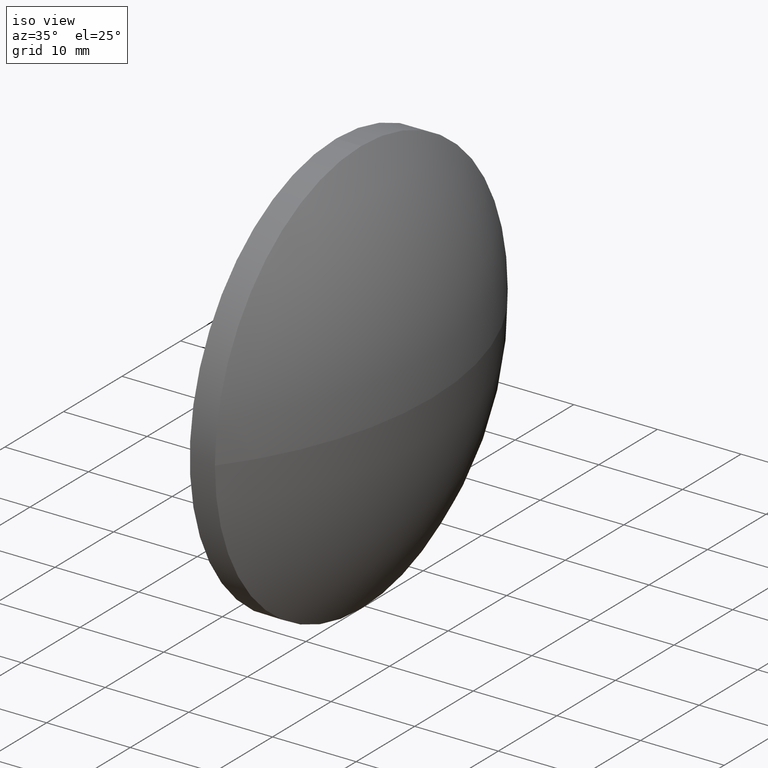
[diagram: clean part render]
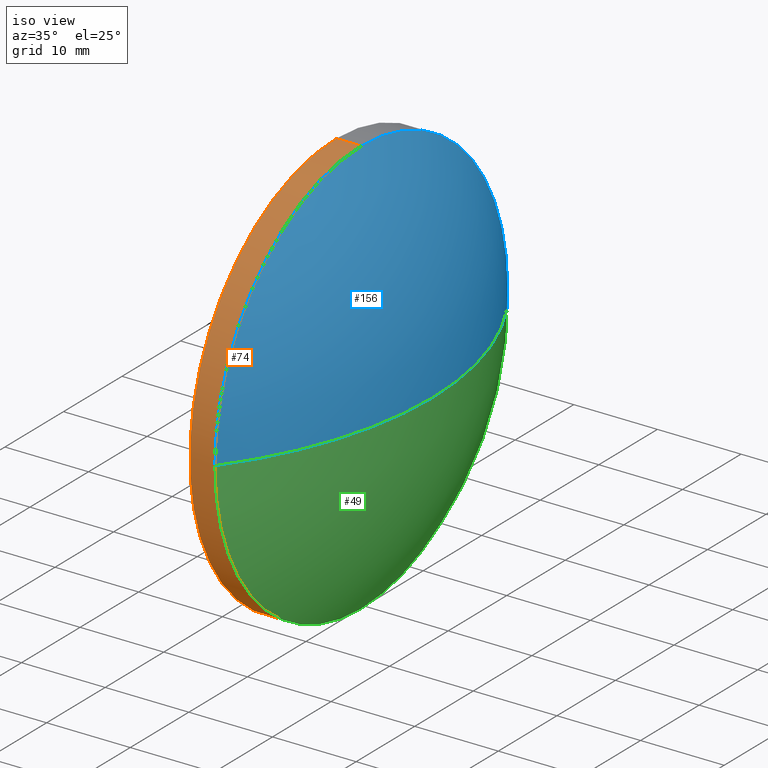
[diagram: same view with three faces highlighted in distinct colors, each labeled with its STEP entity id]
A machine part, iso view with three faces highlighted in distinct colors.
Their STEP definitions:

[orange] entity #74 — the highlighted cylindrical surface (partial cylindrical patch) has radius 25 mm, axis along (-1, -0, -0).
#1 = ORIENTED_EDGE ( 'NONE', *, *, #148, .T. ) ;
#7 = VERTEX_POINT ( 'NONE', #118 ) ;
#12 = CARTESIAN_POINT ( 'NONE',  ( 444.4311937674011100, 47.44710200765325700, 24.99999999999999300 ) ) ;
#15 = VECTOR ( 'NONE', #55, 1000.000000000000000 ) ;
#22 = CYLINDRICAL_SURFACE ( 'NONE', #137, 24.99999999999999300 ) ;
#26 = DIRECTION ( 'NONE',  ( -1.000000000000000000, -0.0000000000000000000, -0.0000000000000000000 ) ) ;
#27 = DIRECTION ( 'NONE',  ( -1.000000000000000000, -0.0000000000000000000, -0.0000000000000000000 ) ) ;
#30 = CARTESIAN_POINT ( 'NONE',  ( 448.4029690565171200, 47.44710200765325700, 24.99999999999999300 ) ) ;
#31 = CARTESIAN_POINT ( 'NONE',  ( 451.4029690565171200, 47.44710200765325700, -24.99999999999999300 ) ) ;
#32 = DIRECTION ( 'NONE',  ( 0.0000000000000000000, 0.0000000000000000000, 1.000000000000000000 ) ) ;
#36 = EDGE_LOOP ( 'NONE', ( #53, #1, #136, #61, #123 ) ) ;
#40 = AXIS2_PLACEMENT_3D ( 'NONE', #120, #144, #180 ) ;
#47 = VERTEX_POINT ( 'NONE', #79 ) ;
#53 = ORIENTED_EDGE ( 'NONE', *, *, #186, .F. ) ;
#55 = DIRECTION ( 'NONE',  ( -1.000000000000000000, -0.0000000000000000000, -0.0000000000000000000 ) ) ;
#59 = EDGE_CURVE ( 'NONE', #65, #178, #93, .T. ) ;
#61 = ORIENTED_EDGE ( 'NONE', *, *, #80, .T. ) ;
#65 = VERTEX_POINT ( 'NONE', #109 ) ;
#74 = ADVANCED_FACE ( 'NONE', ( #179 ), #22, .T. ) ;
#75 = VERTEX_POINT ( 'NONE', #31 ) ;
#79 = CARTESIAN_POINT ( 'NONE',  ( 451.4029690565171200, 22.44710200765326000, 0.0000000000000000000 ) ) ;
#80 = EDGE_CURVE ( 'NONE', #7, #178, #117, .T. ) ;
#84 = DIRECTION ( 'NONE',  ( 0.0000000000000000000, 0.0000000000000000000, 1.000000000000000000 ) ) ;
#85 = EDGE_CURVE ( 'NONE', #47, #7, #111, .T. ) ;
#87 = CARTESIAN_POINT ( 'NONE',  ( 451.4029690565171200, 47.44710200765325700, 0.0000000000000000000 ) ) ;
#93 = CIRCLE ( 'NONE', #40, 24.99999999999999300 ) ;
#98 = CIRCLE ( 'NONE', #110, 24.99999999999999300 ) ;
#103 = AXIS2_PLACEMENT_3D ( 'NONE', #87, #182, #132 ) ;
#108 = CARTESIAN_POINT ( 'NONE',  ( 444.4311937674011100, 47.44710200765325700, -24.99999999999999300 ) ) ;
#109 = CARTESIAN_POINT ( 'NONE',  ( 448.4029690565171200, 47.44710200765325700, -24.99999999999999300 ) ) ;
#110 = AXIS2_PLACEMENT_3D ( 'NONE', #142, #26, #84 ) ;
#111 = CIRCLE ( 'NONE', #103, 24.99999999999999300 ) ;
#117 = LINE ( 'NONE', #12, #181 ) ;
#118 = CARTESIAN_POINT ( 'NONE',  ( 451.4029690565171200, 47.44710200765325700, 24.99999999999999300 ) ) ;
#120 = CARTESIAN_POINT ( 'NONE',  ( 448.4029690565171200, 47.44710200765325700, 0.0000000000000000000 ) ) ;
#121 = DIRECTION ( 'NONE',  ( -1.000000000000000000, -0.0000000000000000000, -0.0000000000000000000 ) ) ;
#123 = ORIENTED_EDGE ( 'NONE', *, *, #59, .F. ) ;
#132 = DIRECTION ( 'NONE',  ( 0.0000000000000000000, 0.0000000000000000000, 1.000000000000000000 ) ) ;
#136 = ORIENTED_EDGE ( 'NONE', *, *, #85, .T. ) ;
#137 = AXIS2_PLACEMENT_3D ( 'NONE', #152, #121, #32 ) ;
#142 = CARTESIAN_POINT ( 'NONE',  ( 451.4029690565171200, 47.44710200765325700, 0.0000000000000000000 ) ) ;
#144 = DIRECTION ( 'NONE',  ( -1.000000000000000000, -0.0000000000000000000, -0.0000000000000000000 ) ) ;
#148 = EDGE_CURVE ( 'NONE', #75, #47, #98, .T. ) ;
#152 = CARTESIAN_POINT ( 'NONE',  ( 444.4311937674011100, 47.44710200765325700, 0.0000000000000000000 ) ) ;
#168 = LINE ( 'NONE', #108, #15 ) ;
#178 = VERTEX_POINT ( 'NONE', #30 ) ;
#179 = FACE_OUTER_BOUND ( 'NONE', #36, .T. ) ;
#180 = DIRECTION ( 'NONE',  ( 0.0000000000000000000, 0.0000000000000000000, 1.000000000000000000 ) ) ;
#181 = VECTOR ( 'NONE', #27, 1000.000000000000000 ) ;
#182 = DIRECTION ( 'NONE',  ( -1.000000000000000000, -0.0000000000000000000, -0.0000000000000000000 ) ) ;
#186 = EDGE_CURVE ( 'NONE', #75, #65, #168, .T. ) ;

[blue] entity #156 — the highlighted spherical surface has radius 41.285 mm.
#3 = AXIS2_PLACEMENT_3D ( 'NONE', #71, #167, #131 ) ;
#7 = VERTEX_POINT ( 'NONE', #118 ) ;
#8 = VERTEX_POINT ( 'NONE', #104 ) ;
#10 = AXIS2_PLACEMENT_3D ( 'NONE', #37, #139, #162 ) ;
#14 = CARTESIAN_POINT ( 'NONE',  ( 451.4029690565171200, 72.44710200765327100, 3.061616997868382600E-015 ) ) ;
#19 = ORIENTED_EDGE ( 'NONE', *, *, #85, .F. ) ;
#24 = DIRECTION ( 'NONE',  ( 0.0000000000000000000, 0.0000000000000000000, 1.000000000000000000 ) ) ;
#37 = CARTESIAN_POINT ( 'NONE',  ( 418.5479809189132500, 47.44710200765326400, 0.0000000000000000000 ) ) ;
#42 = AXIS2_PLACEMENT_3D ( 'NONE', #161, #78, #24 ) ;
#46 = EDGE_CURVE ( 'NONE', #8, #173, #50, .T. ) ;
#47 = VERTEX_POINT ( 'NONE', #79 ) ;
#48 = EDGE_CURVE ( 'NONE', #7, #173, #149, .T. ) ;
#50 = CIRCLE ( 'NONE', #10, 41.28498813760384000 ) ;
#64 = CIRCLE ( 'NONE', #3, 41.28498813760384000 ) ;
#69 = DIRECTION ( 'NONE',  ( 0.0000000000000000000, -1.000000000000000000, 0.0000000000000000000 ) ) ;
#71 = CARTESIAN_POINT ( 'NONE',  ( 418.5479809189132500, 47.44710200765326400, 0.0000000000000000000 ) ) ;
#78 = DIRECTION ( 'NONE',  ( -1.000000000000000000, -0.0000000000000000000, -0.0000000000000000000 ) ) ;
#79 = CARTESIAN_POINT ( 'NONE',  ( 451.4029690565171200, 22.44710200765326000, 0.0000000000000000000 ) ) ;
#85 = EDGE_CURVE ( 'NONE', #47, #7, #111, .T. ) ;
#87 = CARTESIAN_POINT ( 'NONE',  ( 451.4029690565171200, 47.44710200765325700, 0.0000000000000000000 ) ) ;
#103 = AXIS2_PLACEMENT_3D ( 'NONE', #87, #182, #132 ) ;
#104 = CARTESIAN_POINT ( 'NONE',  ( 459.8329690565171300, 47.44710200765326400, 0.0000000000000000000 ) ) ;
#106 = ORIENTED_EDGE ( 'NONE', *, *, #159, .F. ) ;
#111 = CIRCLE ( 'NONE', #103, 24.99999999999999300 ) ;
#112 = ORIENTED_EDGE ( 'NONE', *, *, #48, .F. ) ;
#116 = AXIS2_PLACEMENT_3D ( 'NONE', #129, #151, #69 ) ;
#118 = CARTESIAN_POINT ( 'NONE',  ( 451.4029690565171200, 47.44710200765325700, 24.99999999999999300 ) ) ;
#129 = CARTESIAN_POINT ( 'NONE',  ( 418.5479809189132500, 47.44710200765326400, 0.0000000000000000000 ) ) ;
#131 = DIRECTION ( 'NONE',  ( -1.000000000000000000, 0.0000000000000000000, 0.0000000000000000000 ) ) ;
#132 = DIRECTION ( 'NONE',  ( 0.0000000000000000000, 0.0000000000000000000, 1.000000000000000000 ) ) ;
#133 = ORIENTED_EDGE ( 'NONE', *, *, #46, .T. ) ;
#134 = FACE_OUTER_BOUND ( 'NONE', #165, .T. ) ;
#139 = DIRECTION ( 'NONE',  ( 0.0000000000000000000, -1.224646799147353200E-016, 1.000000000000000000 ) ) ;
#149 = CIRCLE ( 'NONE', #42, 24.99999999999999300 ) ;
#151 = DIRECTION ( 'NONE',  ( 0.0000000000000000000, 0.0000000000000000000, 1.000000000000000000 ) ) ;
#156 = ADVANCED_FACE ( 'NONE', ( #134 ), #176, .T. ) ;
#159 = EDGE_CURVE ( 'NONE', #8, #47, #64, .T. ) ;
#161 = CARTESIAN_POINT ( 'NONE',  ( 451.4029690565171200, 47.44710200765325700, 0.0000000000000000000 ) ) ;
#162 = DIRECTION ( 'NONE',  ( 0.0000000000000000000, -1.000000000000000000, -1.224646799147353200E-016 ) ) ;
#165 = EDGE_LOOP ( 'NONE', ( #106, #133, #112, #19 ) ) ;
#167 = DIRECTION ( 'NONE',  ( 0.0000000000000000000, 0.0000000000000000000, -1.000000000000000000 ) ) ;
#173 = VERTEX_POINT ( 'NONE', #14 ) ;
#176 = SPHERICAL_SURFACE ( 'NONE', #116, 41.28498813760384000 ) ;
#182 = DIRECTION ( 'NONE',  ( -1.000000000000000000, -0.0000000000000000000, -0.0000000000000000000 ) ) ;

[green] entity #49 — the highlighted spherical surface has radius 41.285 mm.
#3 = AXIS2_PLACEMENT_3D ( 'NONE', #71, #167, #131 ) ;
#6 = EDGE_CURVE ( 'NONE', #173, #75, #135, .T. ) ;
#8 = VERTEX_POINT ( 'NONE', #104 ) ;
#9 = DIRECTION ( 'NONE',  ( 0.0000000000000000000, 0.0000000000000000000, 1.000000000000000000 ) ) ;
#10 = AXIS2_PLACEMENT_3D ( 'NONE', #37, #139, #162 ) ;
#14 = CARTESIAN_POINT ( 'NONE',  ( 451.4029690565171200, 72.44710200765327100, 3.061616997868382600E-015 ) ) ;
#23 = DIRECTION ( 'NONE',  ( 0.0000000000000000000, -1.000000000000000000, 0.0000000000000000000 ) ) ;
#26 = DIRECTION ( 'NONE',  ( -1.000000000000000000, -0.0000000000000000000, -0.0000000000000000000 ) ) ;
#31 = CARTESIAN_POINT ( 'NONE',  ( 451.4029690565171200, 47.44710200765325700, -24.99999999999999300 ) ) ;
#33 = AXIS2_PLACEMENT_3D ( 'NONE', #100, #67, #9 ) ;
#34 = ORIENTED_EDGE ( 'NONE', *, *, #46, .F. ) ;
#37 = CARTESIAN_POINT ( 'NONE',  ( 418.5479809189132500, 47.44710200765326400, 0.0000000000000000000 ) ) ;
#38 = CARTESIAN_POINT ( 'NONE',  ( 418.5479809189132500, 47.44710200765326400, 0.0000000000000000000 ) ) ;
#46 = EDGE_CURVE ( 'NONE', #8, #173, #50, .T. ) ;
#47 = VERTEX_POINT ( 'NONE', #79 ) ;
#49 = ADVANCED_FACE ( 'NONE', ( #155 ), #107, .T. ) ;
#50 = CIRCLE ( 'NONE', #10, 41.28498813760384000 ) ;
#62 = AXIS2_PLACEMENT_3D ( 'NONE', #38, #68, #23 ) ;
#64 = CIRCLE ( 'NONE', #3, 41.28498813760384000 ) ;
#67 = DIRECTION ( 'NONE',  ( -1.000000000000000000, -0.0000000000000000000, -0.0000000000000000000 ) ) ;
#68 = DIRECTION ( 'NONE',  ( 0.0000000000000000000, 0.0000000000000000000, 1.000000000000000000 ) ) ;
#71 = CARTESIAN_POINT ( 'NONE',  ( 418.5479809189132500, 47.44710200765326400, 0.0000000000000000000 ) ) ;
#75 = VERTEX_POINT ( 'NONE', #31 ) ;
#79 = CARTESIAN_POINT ( 'NONE',  ( 451.4029690565171200, 22.44710200765326000, 0.0000000000000000000 ) ) ;
#82 = ORIENTED_EDGE ( 'NONE', *, *, #6, .F. ) ;
#84 = DIRECTION ( 'NONE',  ( 0.0000000000000000000, 0.0000000000000000000, 1.000000000000000000 ) ) ;
#98 = CIRCLE ( 'NONE', #110, 24.99999999999999300 ) ;
#100 = CARTESIAN_POINT ( 'NONE',  ( 451.4029690565171200, 47.44710200765325700, 0.0000000000000000000 ) ) ;
#101 = ORIENTED_EDGE ( 'NONE', *, *, #159, .T. ) ;
#104 = CARTESIAN_POINT ( 'NONE',  ( 459.8329690565171300, 47.44710200765326400, 0.0000000000000000000 ) ) ;
#107 = SPHERICAL_SURFACE ( 'NONE', #62, 41.28498813760384000 ) ;
#110 = AXIS2_PLACEMENT_3D ( 'NONE', #142, #26, #84 ) ;
#128 = ORIENTED_EDGE ( 'NONE', *, *, #148, .F. ) ;
#131 = DIRECTION ( 'NONE',  ( -1.000000000000000000, 0.0000000000000000000, 0.0000000000000000000 ) ) ;
#135 = CIRCLE ( 'NONE', #33, 24.99999999999999300 ) ;
#139 = DIRECTION ( 'NONE',  ( 0.0000000000000000000, -1.224646799147353200E-016, 1.000000000000000000 ) ) ;
#142 = CARTESIAN_POINT ( 'NONE',  ( 451.4029690565171200, 47.44710200765325700, 0.0000000000000000000 ) ) ;
#143 = EDGE_LOOP ( 'NONE', ( #34, #101, #128, #82 ) ) ;
#148 = EDGE_CURVE ( 'NONE', #75, #47, #98, .T. ) ;
#155 = FACE_OUTER_BOUND ( 'NONE', #143, .T. ) ;
#159 = EDGE_CURVE ( 'NONE', #8, #47, #64, .T. ) ;
#162 = DIRECTION ( 'NONE',  ( 0.0000000000000000000, -1.000000000000000000, -1.224646799147353200E-016 ) ) ;
#167 = DIRECTION ( 'NONE',  ( 0.0000000000000000000, 0.0000000000000000000, -1.000000000000000000 ) ) ;
#173 = VERTEX_POINT ( 'NONE', #14 ) ;